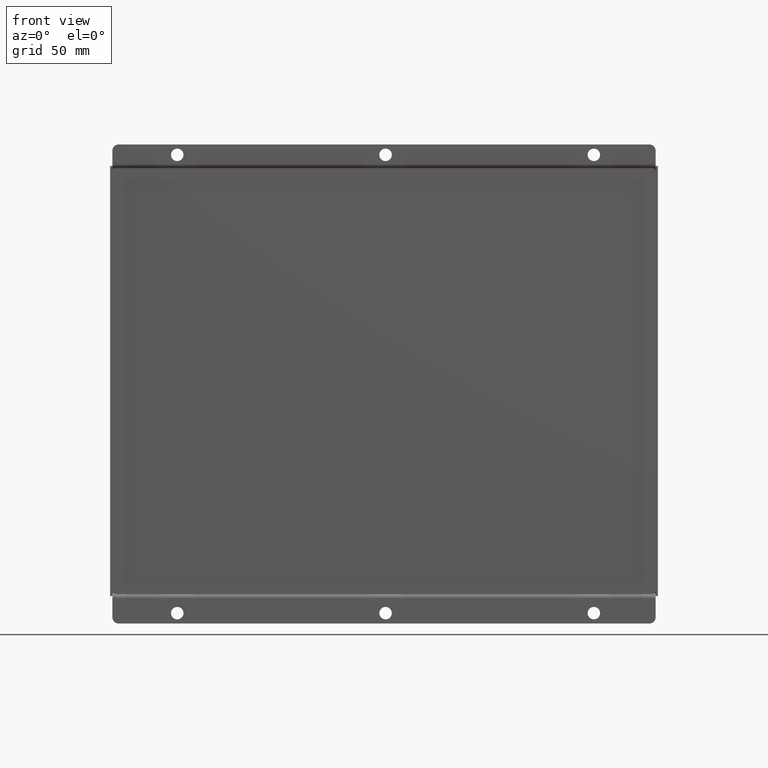
[diagram: clean part render]
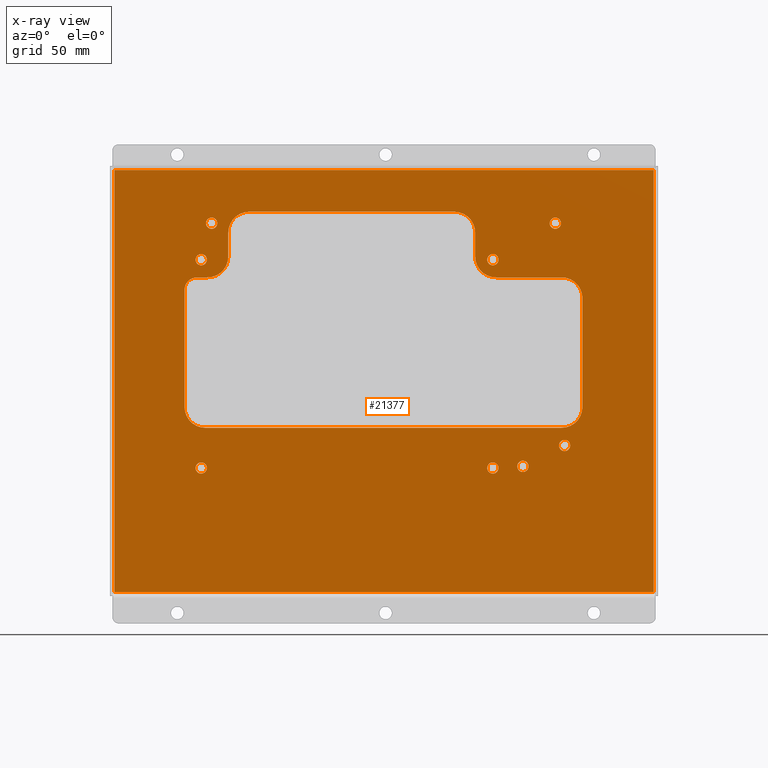
[diagram: x-ray — body ghosted, one internal face saturated and labeled with its STEP entity id]
A machine part, front view, then the same camera in x-ray: the body is ghosted and one INTERNAL B-rep face — a face not visible from any outside direction — is saturated and labeled: STEP entity #21377.
In plain terms, the highlighted planar face has unit normal (0, 1, -0).
Its self-contained STEP definition (entity closure, byte-faithful):
#1037=FACE_BOUND('',#7845,.T.);
#1038=FACE_BOUND('',#7846,.T.);
#1039=FACE_BOUND('',#7847,.T.);
#1040=FACE_BOUND('',#7848,.T.);
#1041=FACE_BOUND('',#7849,.T.);
#1042=FACE_BOUND('',#7850,.T.);
#1043=FACE_BOUND('',#7851,.T.);
#1044=FACE_BOUND('',#7852,.T.);
#1045=FACE_BOUND('',#7853,.T.);
#1624=PLANE('',#23526);
#3127=LINE('',#37260,#4882);
#3131=LINE('',#37272,#4886);
#3135=LINE('',#37284,#4890);
#3139=LINE('',#37296,#4894);
#3143=LINE('',#37308,#4898);
#3147=LINE('',#37320,#4902);
#3151=LINE('',#37332,#4906);
#3153=LINE('',#37340,#4908);
#3228=LINE('',#37697,#4983);
#3237=LINE('',#37774,#4992);
#3239=LINE('',#37822,#4994);
#3252=LINE('',#38036,#5007);
#4882=VECTOR('',#28138,10.);
#4886=VECTOR('',#28150,10.);
#4890=VECTOR('',#28162,10.);
#4894=VECTOR('',#28174,10.);
#4898=VECTOR('',#28186,10.);
#4902=VECTOR('',#28198,10.);
#4906=VECTOR('',#28210,10.);
#4908=VECTOR('',#28220,10.);
#4983=VECTOR('',#28531,10.);
#4992=VECTOR('',#28546,10.);
#4994=VECTOR('',#28550,10.);
#5007=VECTOR('',#28577,10.);
#6457=FACE_OUTER_BOUND('',#7844,.T.);
#7844=EDGE_LOOP('',(#18961,#18962,#18963,#18964));
#7845=EDGE_LOOP('',(#18965,#18966,#18967,#18968,#18969,#18970,#18971,#18972,
#18973,#18974,#18975,#18976,#18977,#18978,#18979,#18980));
#7846=EDGE_LOOP('',(#18981,#18982));
#7847=EDGE_LOOP('',(#18983,#18984));
#7848=EDGE_LOOP('',(#18985,#18986));
#7849=EDGE_LOOP('',(#18987,#18988));
#7850=EDGE_LOOP('',(#18989,#18990));
#7851=EDGE_LOOP('',(#18991,#18992));
#7852=EDGE_LOOP('',(#18993,#18994));
#7853=EDGE_LOOP('',(#18995,#18996));
#8707=CIRCLE('',#23362,6.);
#8709=CIRCLE('',#23366,10.);
#8711=CIRCLE('',#23370,10.);
#8713=CIRCLE('',#23374,10.);
#8715=CIRCLE('',#23378,10.);
#8717=CIRCLE('',#23382,10.);
#8719=CIRCLE('',#23386,10.);
#8721=CIRCLE('',#23390,10.);
#8724=CIRCLE('',#23395,2.705);
#8725=CIRCLE('',#23396,2.705);
#8728=CIRCLE('',#23400,2.705);
#8729=CIRCLE('',#23401,2.705);
#8732=CIRCLE('',#23405,2.705);
#8733=CIRCLE('',#23406,2.705);
#8736=CIRCLE('',#23410,2.705);
#8737=CIRCLE('',#23411,2.705);
#8740=CIRCLE('',#23415,2.705);
#8741=CIRCLE('',#23416,2.705);
#8744=CIRCLE('',#23420,2.705);
#8745=CIRCLE('',#23421,2.705);
#8748=CIRCLE('',#23425,2.705);
#8749=CIRCLE('',#23426,2.705);
#8752=CIRCLE('',#23430,2.705);
#8753=CIRCLE('',#23431,2.705);
#10512=VERTEX_POINT('',#37250);
#10513=VERTEX_POINT('',#37252);
#10515=VERTEX_POINT('',#37258);
#10517=VERTEX_POINT('',#37264);
#10519=VERTEX_POINT('',#37270);
#10521=VERTEX_POINT('',#37276);
#10523=VERTEX_POINT('',#37282);
#10525=VERTEX_POINT('',#37288);
#10527=VERTEX_POINT('',#37294);
#10529=VERTEX_POINT('',#37300);
#10531=VERTEX_POINT('',#37306);
#10533=VERTEX_POINT('',#37312);
#10535=VERTEX_POINT('',#37318);
#10537=VERTEX_POINT('',#37324);
#10539=VERTEX_POINT('',#37330);
#10541=VERTEX_POINT('',#37336);
#10544=VERTEX_POINT('',#37347);
#10545=VERTEX_POINT('',#37349);
#10548=VERTEX_POINT('',#37357);
#10549=VERTEX_POINT('',#37359);
#10552=VERTEX_POINT('',#37367);
#10553=VERTEX_POINT('',#37369);
#10556=VERTEX_POINT('',#37377);
#10557=VERTEX_POINT('',#37379);
#10560=VERTEX_POINT('',#37387);
#10561=VERTEX_POINT('',#37389);
#10564=VERTEX_POINT('',#37397);
#10565=VERTEX_POINT('',#37399);
#10568=VERTEX_POINT('',#37407);
#10569=VERTEX_POINT('',#37409);
#10572=VERTEX_POINT('',#37417);
#10573=VERTEX_POINT('',#37419);
#10648=VERTEX_POINT('',#37653);
#10649=VERTEX_POINT('',#37691);
#10655=VERTEX_POINT('',#37773);
#10658=VERTEX_POINT('',#37821);
#13255=EDGE_CURVE('',#10512,#10513,#8707,.T.);
#13259=EDGE_CURVE('',#10512,#10515,#3127,.T.);
#13262=EDGE_CURVE('',#10515,#10517,#8709,.T.);
#13265=EDGE_CURVE('',#10517,#10519,#3131,.T.);
#13268=EDGE_CURVE('',#10519,#10521,#8711,.T.);
#13271=EDGE_CURVE('',#10521,#10523,#3135,.T.);
#13274=EDGE_CURVE('',#10523,#10525,#8713,.T.);
#13277=EDGE_CURVE('',#10525,#10527,#3139,.T.);
#13280=EDGE_CURVE('',#10527,#10529,#8715,.T.);
#13283=EDGE_CURVE('',#10529,#10531,#3143,.T.);
#13286=EDGE_CURVE('',#10531,#10533,#8717,.T.);
#13289=EDGE_CURVE('',#10533,#10535,#3147,.T.);
#13292=EDGE_CURVE('',#10535,#10537,#8719,.T.);
#13295=EDGE_CURVE('',#10537,#10539,#3151,.T.);
#13298=EDGE_CURVE('',#10539,#10541,#8721,.T.);
#13299=EDGE_CURVE('',#10541,#10513,#3153,.T.);
#13304=EDGE_CURVE('',#10545,#10544,#8724,.T.);
#13305=EDGE_CURVE('',#10544,#10545,#8725,.T.);
#13309=EDGE_CURVE('',#10549,#10548,#8728,.T.);
#13310=EDGE_CURVE('',#10548,#10549,#8729,.T.);
#13314=EDGE_CURVE('',#10553,#10552,#8732,.T.);
#13315=EDGE_CURVE('',#10552,#10553,#8733,.T.);
#13319=EDGE_CURVE('',#10557,#10556,#8736,.T.);
#13320=EDGE_CURVE('',#10556,#10557,#8737,.T.);
#13324=EDGE_CURVE('',#10561,#10560,#8740,.T.);
#13325=EDGE_CURVE('',#10560,#10561,#8741,.T.);
#13329=EDGE_CURVE('',#10565,#10564,#8744,.T.);
#13330=EDGE_CURVE('',#10564,#10565,#8745,.T.);
#13334=EDGE_CURVE('',#10569,#10568,#8748,.T.);
#13335=EDGE_CURVE('',#10568,#10569,#8749,.T.);
#13339=EDGE_CURVE('',#10573,#10572,#8752,.T.);
#13340=EDGE_CURVE('',#10572,#10573,#8753,.T.);
#13450=EDGE_CURVE('',#10648,#10649,#3228,.T.);
#13462=EDGE_CURVE('',#10655,#10648,#3237,.T.);
#13466=EDGE_CURVE('',#10658,#10655,#3239,.T.);
#13489=EDGE_CURVE('',#10649,#10658,#3252,.T.);
#18961=ORIENTED_EDGE('',*,*,#13462,.T.);
#18962=ORIENTED_EDGE('',*,*,#13450,.T.);
#18963=ORIENTED_EDGE('',*,*,#13489,.T.);
#18964=ORIENTED_EDGE('',*,*,#13466,.T.);
#18965=ORIENTED_EDGE('',*,*,#13259,.T.);
#18966=ORIENTED_EDGE('',*,*,#13262,.T.);
#18967=ORIENTED_EDGE('',*,*,#13265,.T.);
#18968=ORIENTED_EDGE('',*,*,#13268,.T.);
#18969=ORIENTED_EDGE('',*,*,#13271,.T.);
#18970=ORIENTED_EDGE('',*,*,#13274,.T.);
#18971=ORIENTED_EDGE('',*,*,#13277,.T.);
#18972=ORIENTED_EDGE('',*,*,#13280,.T.);
#18973=ORIENTED_EDGE('',*,*,#13283,.T.);
#18974=ORIENTED_EDGE('',*,*,#13286,.T.);
#18975=ORIENTED_EDGE('',*,*,#13289,.T.);
#18976=ORIENTED_EDGE('',*,*,#13292,.T.);
#18977=ORIENTED_EDGE('',*,*,#13295,.T.);
#18978=ORIENTED_EDGE('',*,*,#13298,.T.);
#18979=ORIENTED_EDGE('',*,*,#13299,.T.);
#18980=ORIENTED_EDGE('',*,*,#13255,.F.);
#18981=ORIENTED_EDGE('',*,*,#13304,.T.);
#18982=ORIENTED_EDGE('',*,*,#13305,.T.);
#18983=ORIENTED_EDGE('',*,*,#13309,.T.);
#18984=ORIENTED_EDGE('',*,*,#13310,.T.);
#18985=ORIENTED_EDGE('',*,*,#13314,.T.);
#18986=ORIENTED_EDGE('',*,*,#13315,.T.);
#18987=ORIENTED_EDGE('',*,*,#13319,.T.);
#18988=ORIENTED_EDGE('',*,*,#13320,.T.);
#18989=ORIENTED_EDGE('',*,*,#13324,.T.);
#18990=ORIENTED_EDGE('',*,*,#13325,.T.);
#18991=ORIENTED_EDGE('',*,*,#13329,.T.);
#18992=ORIENTED_EDGE('',*,*,#13330,.T.);
#18993=ORIENTED_EDGE('',*,*,#13334,.T.);
#18994=ORIENTED_EDGE('',*,*,#13335,.T.);
#18995=ORIENTED_EDGE('',*,*,#13339,.T.);
#18996=ORIENTED_EDGE('',*,*,#13340,.T.);
#21377=ADVANCED_FACE('',(#6457,#1037,#1038,#1039,#1040,#1041,#1042,#1043,
#1044,#1045),#1624,.F.);
#23362=AXIS2_PLACEMENT_3D('',#37253,#28131,#28132);
#23366=AXIS2_PLACEMENT_3D('',#37266,#28144,#28145);
#23370=AXIS2_PLACEMENT_3D('',#37278,#28156,#28157);
#23374=AXIS2_PLACEMENT_3D('',#37290,#28168,#28169);
#23378=AXIS2_PLACEMENT_3D('',#37302,#28180,#28181);
#23382=AXIS2_PLACEMENT_3D('',#37314,#28192,#28193);
#23386=AXIS2_PLACEMENT_3D('',#37326,#28204,#28205);
#23390=AXIS2_PLACEMENT_3D('',#37338,#28216,#28217);
#23395=AXIS2_PLACEMENT_3D('',#37350,#28229,#28230);
#23396=AXIS2_PLACEMENT_3D('',#37351,#28231,#28232);
#23400=AXIS2_PLACEMENT_3D('',#37360,#28240,#28241);
#23401=AXIS2_PLACEMENT_3D('',#37361,#28242,#28243);
#23405=AXIS2_PLACEMENT_3D('',#37370,#28251,#28252);
#23406=AXIS2_PLACEMENT_3D('',#37371,#28253,#28254);
#23410=AXIS2_PLACEMENT_3D('',#37380,#28262,#28263);
#23411=AXIS2_PLACEMENT_3D('',#37381,#28264,#28265);
#23415=AXIS2_PLACEMENT_3D('',#37390,#28273,#28274);
#23416=AXIS2_PLACEMENT_3D('',#37391,#28275,#28276);
#23420=AXIS2_PLACEMENT_3D('',#37400,#28284,#28285);
#23421=AXIS2_PLACEMENT_3D('',#37401,#28286,#28287);
#23425=AXIS2_PLACEMENT_3D('',#37410,#28295,#28296);
#23426=AXIS2_PLACEMENT_3D('',#37411,#28297,#28298);
#23430=AXIS2_PLACEMENT_3D('',#37420,#28306,#28307);
#23431=AXIS2_PLACEMENT_3D('',#37421,#28308,#28309);
#23526=AXIS2_PLACEMENT_3D('',#38162,#28592,#28593);
#28131=DIRECTION('center_axis',(0.,0.,-1.));
#28132=DIRECTION('ref_axis',(0.707106781186549,0.707106781186546,0.));
#28138=DIRECTION('',(-1.,0.,0.));
#28144=DIRECTION('center_axis',(0.,0.,-1.));
#28145=DIRECTION('ref_axis',(-1.,2.39808173319034E-14,0.));
#28150=DIRECTION('',(2.39422008788806E-14,1.,0.));
#28156=DIRECTION('center_axis',(0.,0.,1.));
#28157=DIRECTION('ref_axis',(-1.,2.39808173319034E-14,0.));
#28162=DIRECTION('',(-1.,2.38951554538619E-14,0.));
#28168=DIRECTION('center_axis',(0.,0.,1.));
#28169=DIRECTION('ref_axis',(-2.39808173319034E-14,-1.,0.));
#28174=DIRECTION('',(-2.2397542757656E-14,-1.,0.));
#28180=DIRECTION('center_axis',(0.,0.,-1.));
#28181=DIRECTION('ref_axis',(0.,-1.,0.));
#28186=DIRECTION('',(-1.,-2.81961403079401E-16,0.));
#28192=DIRECTION('center_axis',(0.,0.,1.));
#28193=DIRECTION('ref_axis',(0.,-1.,0.));
#28198=DIRECTION('',(6.80596490191672E-16,-1.,0.));
#28204=DIRECTION('center_axis',(0.,0.,1.));
#28205=DIRECTION('ref_axis',(1.,4.44089209850063E-16,0.));
#28210=DIRECTION('',(1.,1.5582077538599E-16,0.));
#28216=DIRECTION('center_axis',(0.,0.,1.));
#28217=DIRECTION('ref_axis',(0.,1.,0.));
#28220=DIRECTION('',(0.,1.,0.));
#28229=DIRECTION('center_axis',(0.,0.,1.));
#28230=DIRECTION('ref_axis',(1.,0.,0.));
#28231=DIRECTION('center_axis',(0.,0.,1.));
#28232=DIRECTION('ref_axis',(1.,0.,0.));
#28240=DIRECTION('center_axis',(0.,0.,1.));
#28241=DIRECTION('ref_axis',(1.,0.,0.));
#28242=DIRECTION('center_axis',(0.,0.,1.));
#28243=DIRECTION('ref_axis',(1.,0.,0.));
#28251=DIRECTION('center_axis',(0.,0.,1.));
#28252=DIRECTION('ref_axis',(1.,0.,0.));
#28253=DIRECTION('center_axis',(0.,0.,1.));
#28254=DIRECTION('ref_axis',(1.,0.,0.));
#28262=DIRECTION('center_axis',(0.,0.,1.));
#28263=DIRECTION('ref_axis',(1.,0.,0.));
#28264=DIRECTION('center_axis',(0.,0.,1.));
#28265=DIRECTION('ref_axis',(1.,0.,0.));
#28273=DIRECTION('center_axis',(0.,0.,1.));
#28274=DIRECTION('ref_axis',(1.,0.,0.));
#28275=DIRECTION('center_axis',(0.,0.,1.));
#28276=DIRECTION('ref_axis',(1.,0.,0.));
#28284=DIRECTION('center_axis',(0.,0.,1.));
#28285=DIRECTION('ref_axis',(1.,0.,0.));
#28286=DIRECTION('center_axis',(0.,0.,1.));
#28287=DIRECTION('ref_axis',(1.,0.,0.));
#28295=DIRECTION('center_axis',(0.,0.,1.));
#28296=DIRECTION('ref_axis',(1.,0.,0.));
#28297=DIRECTION('center_axis',(0.,0.,1.));
#28298=DIRECTION('ref_axis',(1.,0.,0.));
#28306=DIRECTION('center_axis',(0.,0.,1.));
#28307=DIRECTION('ref_axis',(1.,0.,0.));
#28308=DIRECTION('center_axis',(0.,0.,1.));
#28309=DIRECTION('ref_axis',(1.,0.,0.));
#28531=DIRECTION('',(0.,-1.,0.));
#28546=DIRECTION('',(1.,1.371704123089E-16,0.));
#28550=DIRECTION('',(-1.73726830259193E-16,1.,0.));
#28577=DIRECTION('',(-1.,-2.74340824617799E-16,0.));
#28592=DIRECTION('center_axis',(0.,0.,1.));
#28593=DIRECTION('ref_axis',(1.,0.,0.));
#37250=CARTESIAN_POINT('',(89.7500000000007,48.2500000000019,0.));
#37252=CARTESIAN_POINT('',(95.7500000000007,42.2500000000019,0.));
#37253=CARTESIAN_POINT('Origin',(89.7500000000007,42.2500000000019,0.));
#37258=CARTESIAN_POINT('',(84.7500000000022,48.2500000000019,0.));
#37260=CARTESIAN_POINT('',(42.3165325576104,48.2500000000019,0.));
#37264=CARTESIAN_POINT('',(74.7500000000022,58.2500000000022,0.));
#37266=CARTESIAN_POINT('Origin',(84.7500000000022,58.2500000000019,0.));
#37270=CARTESIAN_POINT('',(74.7500000000025,69.7499999999985,0.));
#37272=CARTESIAN_POINT('',(74.7500000000016,34.1249999999984,0.));
#37276=CARTESIAN_POINT('',(64.7500000000027,79.7499999999987,0.));
#37278=CARTESIAN_POINT('Origin',(64.7500000000025,69.7499999999987,0.));
#37282=CARTESIAN_POINT('',(-33.7499999999945,79.7500000000011,0.));
#37284=CARTESIAN_POINT('',(-16.933467442387,79.7500000000007,0.));
#37288=CARTESIAN_POINT('',(-43.7499999999947,69.7500000000014,0.));
#37290=CARTESIAN_POINT('Origin',(-33.7499999999947,69.7500000000011,0.));
#37294=CARTESIAN_POINT('',(-43.749999999995,58.2500000000017,0.));
#37296=CARTESIAN_POINT('',(-43.7499999999956,28.3750000000013,0.));
#37300=CARTESIAN_POINT('',(-53.749999999995,48.250000000002,0.));
#37302=CARTESIAN_POINT('Origin',(-53.749999999995,58.2500000000019,0.));
#37306=CARTESIAN_POINT('',(-85.2499999999954,48.2500000000019,0.));
#37308=CARTESIAN_POINT('',(-42.6834674423884,48.250000000002,0.));
#37312=CARTESIAN_POINT('',(-95.2499999999954,38.2500000000019,0.));
#37314=CARTESIAN_POINT('Origin',(-85.2499999999954,38.2500000000019,0.));
#37318=CARTESIAN_POINT('',(-95.2499999999954,-13.9499999999977,0.));
#37320=CARTESIAN_POINT('',(-95.2499999999954,-7.72499999999887,0.));
#37324=CARTESIAN_POINT('',(-85.2499999999954,-23.9499999999977,0.));
#37326=CARTESIAN_POINT('Origin',(-85.2499999999954,-13.9499999999977,0.));
#37330=CARTESIAN_POINT('',(85.7500000000007,-23.9499999999976,0.));
#37332=CARTESIAN_POINT('',(42.8165325576096,-23.9499999999977,0.));
#37336=CARTESIAN_POINT('',(95.7500000000007,-13.9499999999976,0.));
#37338=CARTESIAN_POINT('Origin',(85.7500000000007,-13.9499999999976,0.));
#37340=CARTESIAN_POINT('',(95.7500000000007,23.375000000001,0.));
#37347=CARTESIAN_POINT('',(85.0450000000026,56.7499999999986,0.));
#37349=CARTESIAN_POINT('',(90.4550000000026,56.7499999999986,0.));
#37350=CARTESIAN_POINT('Origin',(87.7500000000026,56.7499999999986,0.));
#37351=CARTESIAN_POINT('Origin',(87.7500000000026,56.7499999999986,0.));
#37357=CARTESIAN_POINT('',(-84.9549999999944,74.2500000000024,0.));
#37359=CARTESIAN_POINT('',(-79.5449999999944,74.2500000000024,0.));
#37360=CARTESIAN_POINT('Origin',(-82.2499999999944,74.2500000000024,0.));
#37361=CARTESIAN_POINT('Origin',(-82.2499999999944,74.2500000000024,0.));
#37367=CARTESIAN_POINT('',(-69.3950000000003,-42.4499999999975,0.));
#37369=CARTESIAN_POINT('',(-63.9850000000003,-42.4499999999975,0.));
#37370=CARTESIAN_POINT('Origin',(-66.6900000000003,-42.4499999999975,0.));
#37371=CARTESIAN_POINT('Origin',(-66.6900000000003,-42.4499999999975,0.));
#37377=CARTESIAN_POINT('',(85.0450000000006,-43.2499999999996,0.));
#37379=CARTESIAN_POINT('',(90.4550000000006,-43.2499999999996,0.));
#37380=CARTESIAN_POINT('Origin',(87.7500000000006,-43.2499999999996,0.));
#37381=CARTESIAN_POINT('Origin',(87.7500000000006,-43.2499999999996,0.));
#37387=CARTESIAN_POINT('',(-54.9549999999971,-43.2499999999962,0.));
#37389=CARTESIAN_POINT('',(-49.5449999999971,-43.2499999999962,0.));
#37390=CARTESIAN_POINT('Origin',(-52.2499999999971,-43.2499999999962,0.));
#37391=CARTESIAN_POINT('Origin',(-52.2499999999971,-43.2499999999962,0.));
#37397=CARTESIAN_POINT('',(-89.395,-32.4499999999976,0.));
#37399=CARTESIAN_POINT('',(-83.985,-32.4499999999976,0.));
#37400=CARTESIAN_POINT('Origin',(-86.69,-32.4499999999976,0.));
#37401=CARTESIAN_POINT('Origin',(-86.69,-32.4499999999976,0.));
#37407=CARTESIAN_POINT('',(-54.954999999995,56.7500000000019,0.));
#37409=CARTESIAN_POINT('',(-49.544999999995,56.7500000000019,0.));
#37410=CARTESIAN_POINT('Origin',(-52.249999999995,56.7500000000019,0.));
#37411=CARTESIAN_POINT('Origin',(-52.249999999995,56.7500000000019,0.));
#37417=CARTESIAN_POINT('',(80.0450000000026,74.2499999999985,0.));
#37419=CARTESIAN_POINT('',(85.4550000000026,74.2499999999985,0.));
#37420=CARTESIAN_POINT('Origin',(82.7500000000026,74.2499999999985,0.));
#37421=CARTESIAN_POINT('Origin',(82.7500000000026,74.2499999999985,0.));
#37653=CARTESIAN_POINT('',(129.5,99.75,0.));
#37691=CARTESIAN_POINT('',(129.5,-102.75,0.));
#37697=CARTESIAN_POINT('',(129.5,-52.625,0.));
#37773=CARTESIAN_POINT('',(-129.5,99.75,0.));
#37774=CARTESIAN_POINT('',(64.6915325576093,99.75,0.));
#37821=CARTESIAN_POINT('',(-129.5,-102.75,0.));
#37822=CARTESIAN_POINT('',(-129.5,49.625,0.));
#38036=CARTESIAN_POINT('',(-64.8084674423907,-102.75,0.));
#38162=CARTESIAN_POINT('Origin',(-0.116934884781422,-1.50000000000001,0.));